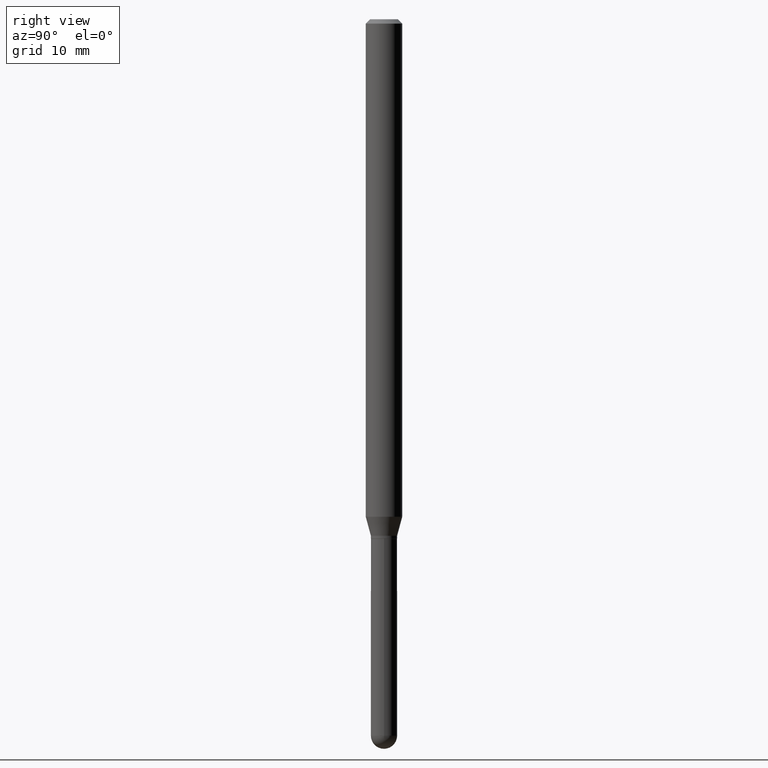
[diagram: clean part render]
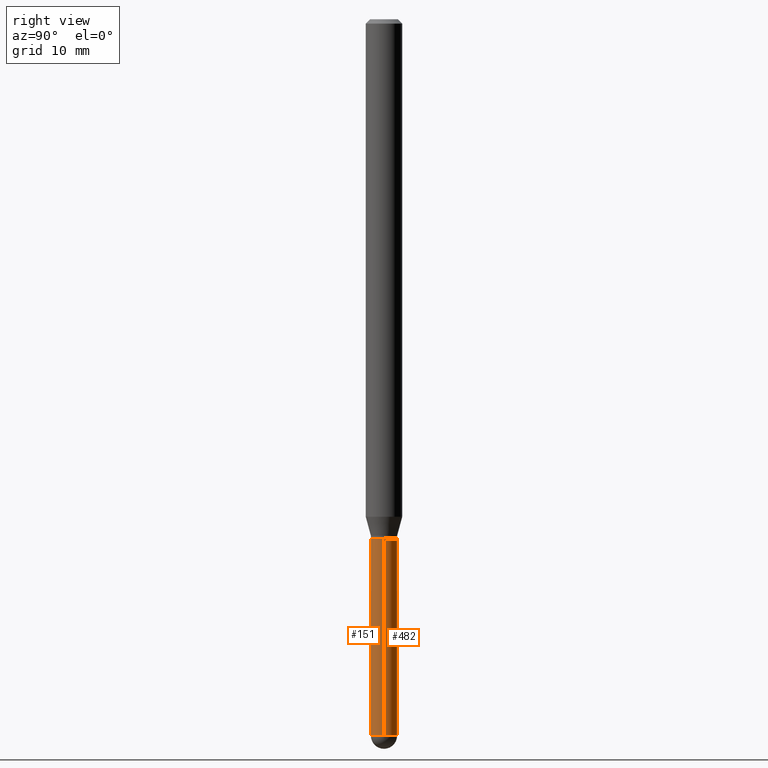
[diagram: same view with one multi-face feature highlighted, each face labeled with its STEP entity id]
A machine part, right view. The highlighted faces form ONE feature: a constant-radius fillet chain: 2 tangent blend faces with common blend radius 1.143 mm. The faces share edges in the B-rep.
Their STEP definitions:
[1] entity #482 (Cylinder):
#8 = VERTEX_POINT ( 'NONE', #62 ) ;
#20 = DIRECTION ( 'NONE',  ( -2.445468806185136597E-29, 3.491481338843145583E-15, 1.000000000000000000 ) ) ;
#34 = CARTESIAN_POINT ( 'NONE',  ( 6.003625919184510659E-29, -8.571586686859921733E-15, -2.455000000000000071 ) ) ;
#36 = CARTESIAN_POINT ( 'NONE',  ( 0.000000000000000000, 0.000000000000000000, 0.000000000000000000 ) ) ;
#59 = DIRECTION ( 'NONE',  ( -2.445468806185136877E-29, 3.491481338843145188E-15, 1.000000000000000000 ) ) ;
#60 = EDGE_CURVE ( 'NONE', #124, #397, #494, .T. ) ;
#62 = CARTESIAN_POINT ( 'NONE',  ( -0.04499999999999999833, -7.073467503908314913E-15, -1.780000000000000027 ) ) ;
#70 = DIRECTION ( 'NONE',  ( -2.445468806185136877E-29, 3.491481338843145188E-15, 1.000000000000000000 ) ) ;
#78 = EDGE_CURVE ( 'NONE', #267, #110, #464, .T. ) ;
#80 = ORIENTED_EDGE ( 'NONE', *, *, #78, .T. ) ;
#108 = DIRECTION ( 'NONE',  ( -2.445468806185136597E-29, 3.491481338843145583E-15, 1.000000000000000000 ) ) ;
#110 = VERTEX_POINT ( 'NONE', #281 ) ;
#117 = EDGE_LOOP ( 'NONE', ( #80, #496, #129, #273, #404 ) ) ;
#121 = VECTOR ( 'NONE', #70, 39.37007874015748143 ) ;
#124 = VERTEX_POINT ( 'NONE', #460 ) ;
#129 = ORIENTED_EDGE ( 'NONE', *, *, #381, .F. ) ;
#147 = CIRCLE ( 'NONE', #409, 0.04500000000000001221 ) ;
#175 = CARTESIAN_POINT ( 'NONE',  ( -0.04500000000000000527, 3.197442310920451211E-16, -2.213520790614707910E-30 ) ) ;
#182 = DIRECTION ( 'NONE',  ( 1.000000000000000000, -6.982962677686266711E-15, 0.000000000000000000 ) ) ;
#263 = VECTOR ( 'NONE', #59, 39.37007874015748143 ) ;
#267 = VERTEX_POINT ( 'NONE', #282 ) ;
#273 = ORIENTED_EDGE ( 'NONE', *, *, #60, .F. ) ;
#279 = CARTESIAN_POINT ( 'NONE',  ( 4.352934475009543120E-29, -6.214836783140799618E-15, -1.780000000000000027 ) ) ;
#281 = CARTESIAN_POINT ( 'NONE',  ( -0.04500000000000001221, -7.073467503908314913E-15, -2.455000000000000071 ) ) ;
#282 = CARTESIAN_POINT ( 'NONE',  ( 3.142333204959410482E-16, 0.04499999999999129002, -2.455000000000000071 ) ) ;
#283 = DIRECTION ( 'NONE',  ( 1.000000000000000000, -6.982962677686266711E-15, 0.000000000000000000 ) ) ;
#314 = CIRCLE ( 'NONE', #509, 0.04499999999999999833 ) ;
#323 = CARTESIAN_POINT ( 'NONE',  ( 0.04500000000000000527, -3.142333204958820809E-16, 2.194279549108171317E-30 ) ) ;
#324 = DIRECTION ( 'NONE',  ( 1.000000000000000000, -6.982962677686269077E-15, 0.000000000000000000 ) ) ;
#325 = EDGE_CURVE ( 'NONE', #110, #8, #455, .T. ) ;
#345 = FACE_OUTER_BOUND ( 'NONE', #117, .T. ) ;
#347 = EDGE_CURVE ( 'NONE', #124, #267, #147, .T. ) ;
#364 = AXIS2_PLACEMENT_3D ( 'NONE', #367, #20, #283 ) ;
#367 = CARTESIAN_POINT ( 'NONE',  ( 6.003625919184510659E-29, -8.571586686859921733E-15, -2.455000000000000071 ) ) ;
#377 = DIRECTION ( 'NONE',  ( -2.445468806185136597E-29, 3.491481338843145583E-15, 1.000000000000000000 ) ) ;
#381 = EDGE_CURVE ( 'NONE', #397, #8, #314, .T. ) ;
#385 = CYLINDRICAL_SURFACE ( 'NONE', #419, 0.04500000000000000527 ) ;
#397 = VERTEX_POINT ( 'NONE', #497 ) ;
#404 = ORIENTED_EDGE ( 'NONE', *, *, #347, .T. ) ;
#409 = AXIS2_PLACEMENT_3D ( 'NONE', #34, #377, #182 ) ;
#419 = AXIS2_PLACEMENT_3D ( 'NONE', #36, #108, #434 ) ;
#434 = DIRECTION ( 'NONE',  ( 1.000000000000000000, -6.982962677686267499E-15, 4.876176775795935793E-29 ) ) ;
#449 = DIRECTION ( 'NONE',  ( -2.445468806185136597E-29, 3.491481338843145583E-15, 1.000000000000000000 ) ) ;
#455 = LINE ( 'NONE', #175, #121 ) ;
#460 = CARTESIAN_POINT ( 'NONE',  ( 0.04500000000000001221, -7.707445055496241968E-15, -2.455000000000000071 ) ) ;
#464 = CIRCLE ( 'NONE', #364, 0.04500000000000001221 ) ;
#482 = ADVANCED_FACE ( 'NONE', ( #345 ), #385, .T. ) ;
#494 = LINE ( 'NONE', #323, #263 ) ;
#496 = ORIENTED_EDGE ( 'NONE', *, *, #325, .T. ) ;
#497 = CARTESIAN_POINT ( 'NONE',  ( 0.04499999999999999833, -6.529070103636681305E-15, -1.780000000000000027 ) ) ;
#509 = AXIS2_PLACEMENT_3D ( 'NONE', #279, #449, #324 ) ;
[2] entity #151 (Cylinder):
#8 = VERTEX_POINT ( 'NONE', #62 ) ;
#11 = ORIENTED_EDGE ( 'NONE', *, *, #325, .F. ) ;
#41 = DIRECTION ( 'NONE',  ( -2.445468806185136597E-29, 3.491481338843145583E-15, 1.000000000000000000 ) ) ;
#53 = ORIENTED_EDGE ( 'NONE', *, *, #60, .T. ) ;
#59 = DIRECTION ( 'NONE',  ( -2.445468806185136877E-29, 3.491481338843145188E-15, 1.000000000000000000 ) ) ;
#60 = EDGE_CURVE ( 'NONE', #124, #397, #494, .T. ) ;
#62 = CARTESIAN_POINT ( 'NONE',  ( -0.04499999999999999833, -7.073467503908314913E-15, -1.780000000000000027 ) ) ;
#70 = DIRECTION ( 'NONE',  ( -2.445468806185136877E-29, 3.491481338843145188E-15, 1.000000000000000000 ) ) ;
#76 = CIRCLE ( 'NONE', #201, 0.04500000000000001221 ) ;
#101 = CARTESIAN_POINT ( 'NONE',  ( -3.197442310919840337E-16, -0.04500000000000843603, -2.454999999999999627 ) ) ;
#102 = DIRECTION ( 'NONE',  ( -2.445468806185136597E-29, 3.491481338843145583E-15, 1.000000000000000000 ) ) ;
#105 = CARTESIAN_POINT ( 'NONE',  ( 6.003625919184510659E-29, -8.571586686859921733E-15, -2.455000000000000071 ) ) ;
#109 = FACE_OUTER_BOUND ( 'NONE', #498, .T. ) ;
#110 = VERTEX_POINT ( 'NONE', #281 ) ;
#121 = VECTOR ( 'NONE', #70, 39.37007874015748143 ) ;
#124 = VERTEX_POINT ( 'NONE', #460 ) ;
#126 = VERTEX_POINT ( 'NONE', #101 ) ;
#151 = ADVANCED_FACE ( 'NONE', ( #109 ), #180, .T. ) ;
#175 = CARTESIAN_POINT ( 'NONE',  ( -0.04500000000000000527, 3.197442310920451211E-16, -2.213520790614707910E-30 ) ) ;
#176 = AXIS2_PLACEMENT_3D ( 'NONE', #466, #346, #261 ) ;
#180 = CYLINDRICAL_SURFACE ( 'NONE', #176, 0.04500000000000000527 ) ;
#201 = AXIS2_PLACEMENT_3D ( 'NONE', #105, #260, #507 ) ;
#205 = CIRCLE ( 'NONE', #321, 0.04500000000000001221 ) ;
#230 = ORIENTED_EDGE ( 'NONE', *, *, #400, .F. ) ;
#260 = DIRECTION ( 'NONE',  ( -2.445468806185136597E-29, 3.491481338843145583E-15, 1.000000000000000000 ) ) ;
#261 = DIRECTION ( 'NONE',  ( 1.000000000000000000, -6.982962677686267499E-15, 4.876176775795935793E-29 ) ) ;
#263 = VECTOR ( 'NONE', #59, 39.37007874015748143 ) ;
#277 = EDGE_CURVE ( 'NONE', #126, #124, #205, .T. ) ;
#281 = CARTESIAN_POINT ( 'NONE',  ( -0.04500000000000001221, -7.073467503908314913E-15, -2.455000000000000071 ) ) ;
#321 = AXIS2_PLACEMENT_3D ( 'NONE', #412, #102, #416 ) ;
#323 = CARTESIAN_POINT ( 'NONE',  ( 0.04500000000000000527, -3.142333204958820809E-16, 2.194279549108171317E-30 ) ) ;
#325 = EDGE_CURVE ( 'NONE', #110, #8, #455, .T. ) ;
#341 = CIRCLE ( 'NONE', #485, 0.04499999999999999833 ) ;
#346 = DIRECTION ( 'NONE',  ( -2.445468806185136597E-29, 3.491481338843145583E-15, 1.000000000000000000 ) ) ;
#350 = ORIENTED_EDGE ( 'NONE', *, *, #277, .T. ) ;
#395 = ORIENTED_EDGE ( 'NONE', *, *, #443, .T. ) ;
#397 = VERTEX_POINT ( 'NONE', #497 ) ;
#400 = EDGE_CURVE ( 'NONE', #8, #397, #341, .T. ) ;
#412 = CARTESIAN_POINT ( 'NONE',  ( 6.003625919184510659E-29, -8.571586686859921733E-15, -2.455000000000000071 ) ) ;
#416 = DIRECTION ( 'NONE',  ( 1.000000000000000000, -6.982962677686266711E-15, 0.000000000000000000 ) ) ;
#443 = EDGE_CURVE ( 'NONE', #110, #126, #76, .T. ) ;
#451 = CARTESIAN_POINT ( 'NONE',  ( 4.352934475009543120E-29, -6.214836783140799618E-15, -1.780000000000000027 ) ) ;
#455 = LINE ( 'NONE', #175, #121 ) ;
#460 = CARTESIAN_POINT ( 'NONE',  ( 0.04500000000000001221, -7.707445055496241968E-15, -2.455000000000000071 ) ) ;
#466 = CARTESIAN_POINT ( 'NONE',  ( 0.000000000000000000, 0.000000000000000000, 0.000000000000000000 ) ) ;
#473 = DIRECTION ( 'NONE',  ( 1.000000000000000000, -6.982962677686269077E-15, 0.000000000000000000 ) ) ;
#485 = AXIS2_PLACEMENT_3D ( 'NONE', #451, #41, #473 ) ;
#494 = LINE ( 'NONE', #323, #263 ) ;
#497 = CARTESIAN_POINT ( 'NONE',  ( 0.04499999999999999833, -6.529070103636681305E-15, -1.780000000000000027 ) ) ;
#498 = EDGE_LOOP ( 'NONE', ( #11, #395, #350, #53, #230 ) ) ;
#507 = DIRECTION ( 'NONE',  ( 1.000000000000000000, -6.982962677686266711E-15, 0.000000000000000000 ) ) ;